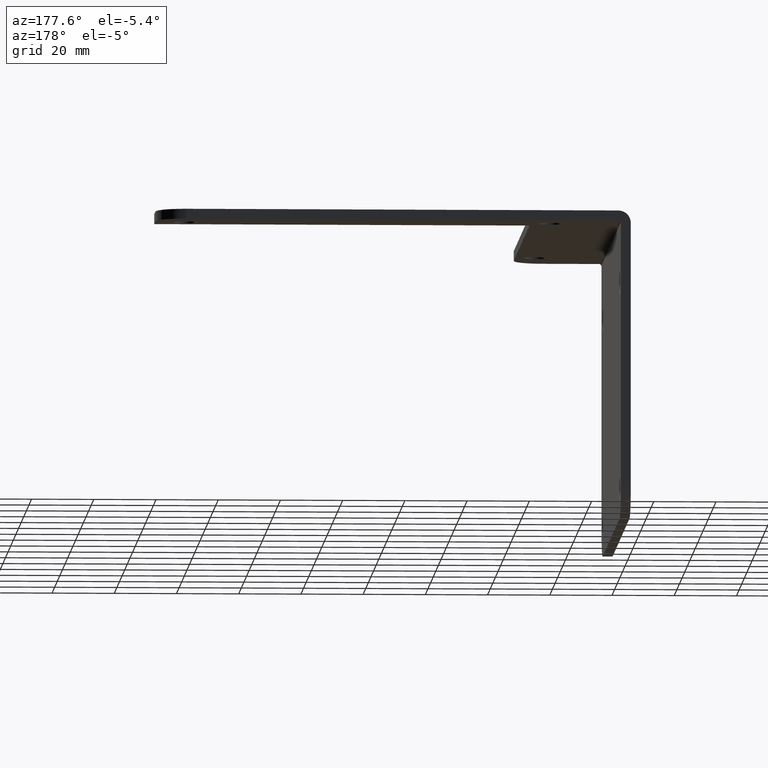
[diagram: clean part render]
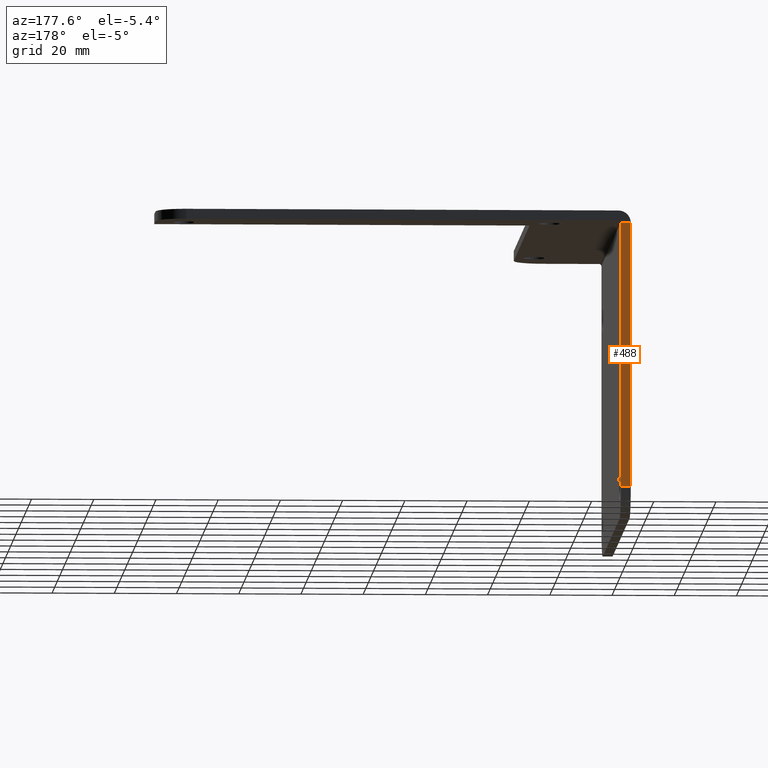
[diagram: same view with one face highlighted and labeled with its STEP entity id]
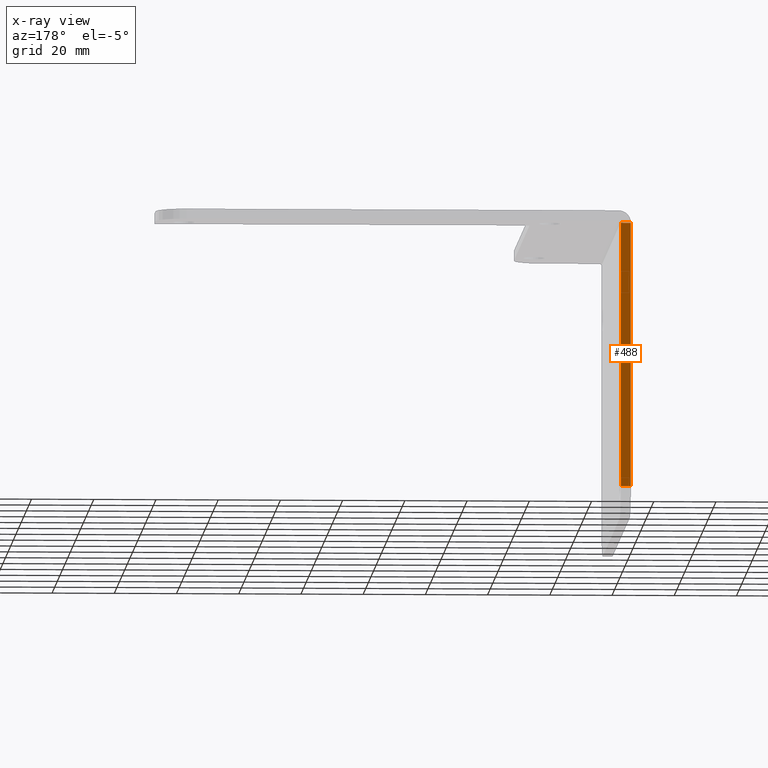
[diagram: x-ray of the same camera — body ghosted, the highlighted face saturated]
A machine part, auxiliary view. The second image highlights one B-rep face of the part: STEP entity #488.
The next image is the same camera in x-ray: the body ghosted, the highlighted face saturated — about 0% of this face is hidden behind the body in this view.
In plain terms, the highlighted planar face has unit normal (0, 1, 0).
Its self-contained STEP definition (entity closure, byte-faithful):
#39=PLANE('',#531);
#56=FACE_OUTER_BOUND('',#90,.T.);
#90=EDGE_LOOP('',(#361,#362,#363,#364));
#140=LINE('',#760,#174);
#142=LINE('',#774,#176);
#144=LINE('',#778,#178);
#145=LINE('',#779,#179);
#174=VECTOR('',#611,3.34375);
#176=VECTOR('',#625,0.125);
#178=VECTOR('',#629,3.34375);
#179=VECTOR('',#630,0.125);
#239=VERTEX_POINT('',#757);
#240=VERTEX_POINT('',#759);
#246=VERTEX_POINT('',#772);
#247=VERTEX_POINT('',#777);
#285=EDGE_CURVE('',#239,#240,#140,.T.);
#292=EDGE_CURVE('',#246,#239,#142,.T.);
#294=EDGE_CURVE('',#246,#247,#144,.T.);
#295=EDGE_CURVE('',#247,#240,#145,.T.);
#361=ORIENTED_EDGE('',*,*,#292,.F.);
#362=ORIENTED_EDGE('',*,*,#294,.T.);
#363=ORIENTED_EDGE('',*,*,#295,.T.);
#364=ORIENTED_EDGE('',*,*,#285,.F.);
#488=ADVANCED_FACE('',(#56),#39,.T.);
#531=AXIS2_PLACEMENT_3D('',#776,#627,#628);
#611=DIRECTION('',(-1.72915050606973E-15,-5.95194116066426E-17,1.));
#625=DIRECTION('',(1.,-5.95194116066427E-17,1.71512449944288E-15));
#627=DIRECTION('center_axis',(5.95194116066426E-17,1.,5.95194116066427E-17));
#628=DIRECTION('ref_axis',(-1.,0.,-1.71841707530262E-15));
#629=DIRECTION('',(-1.72915050606973E-15,-5.95194116066426E-17,1.));
#630=DIRECTION('',(1.,-5.95194116066427E-17,1.71512449944288E-15));
#757=CARTESIAN_POINT('',(-2.87499999999999,2.9375,-3.375));
#759=CARTESIAN_POINT('',(-2.875,2.9375,-0.0312499999999999));
#760=CARTESIAN_POINT('',(-2.875,2.9375,0.146642684009522));
#772=CARTESIAN_POINT('',(-2.99999999999999,2.9375,-3.375));
#774=CARTESIAN_POINT('',(-2.87499999999999,2.9375,-3.375));
#776=CARTESIAN_POINT('Origin',(-2.875,2.9375,-0.0312499999999999));
#777=CARTESIAN_POINT('',(-3.,2.9375,-0.0312500000000003));
#778=CARTESIAN_POINT('',(-3.,2.9375,0.146642684009521));
#779=CARTESIAN_POINT('',(-2.8876875,2.9375,-0.0312499999999999));